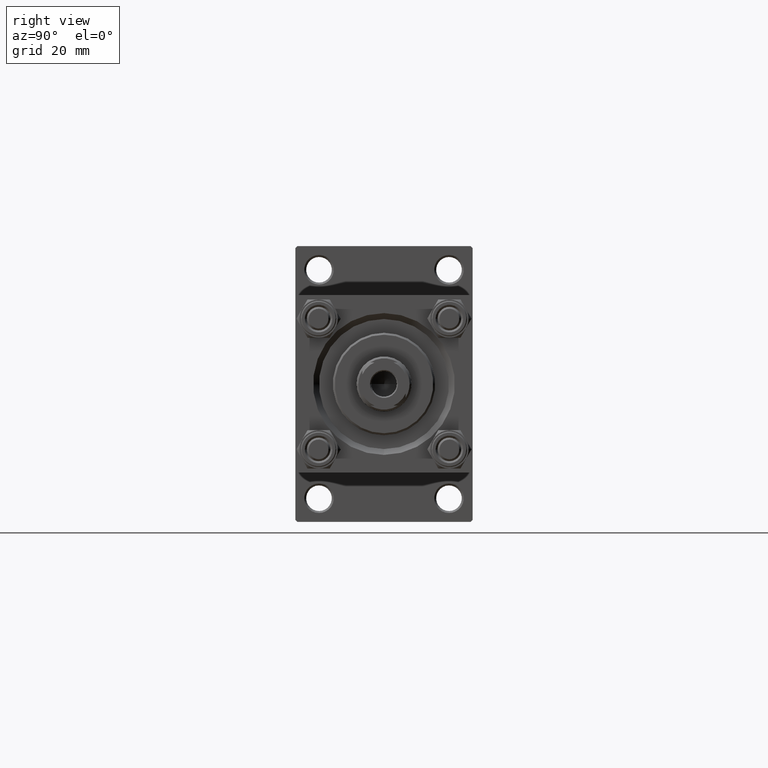
[diagram: clean part render]
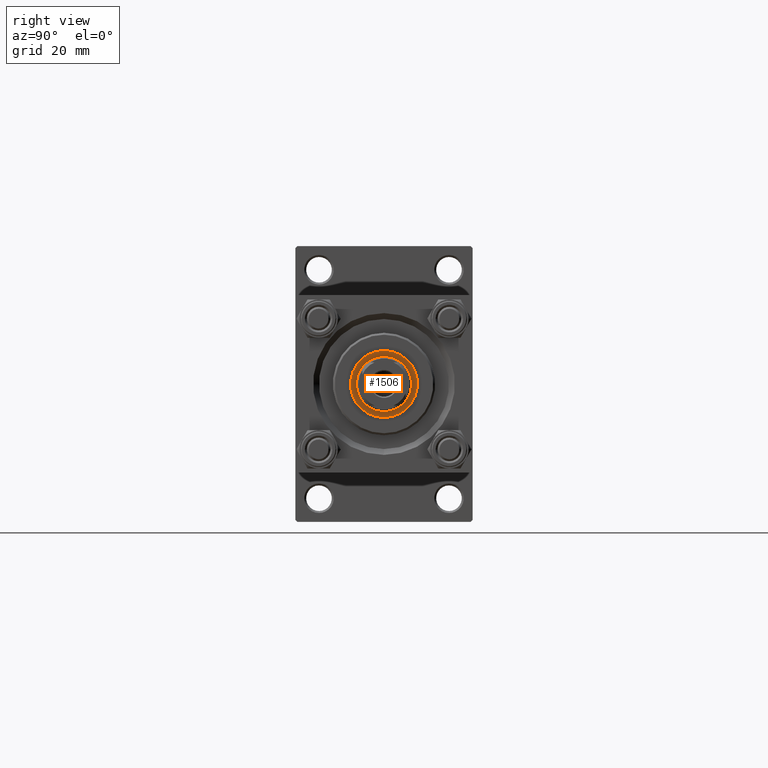
[diagram: same view with one face highlighted and labeled with its STEP entity id]
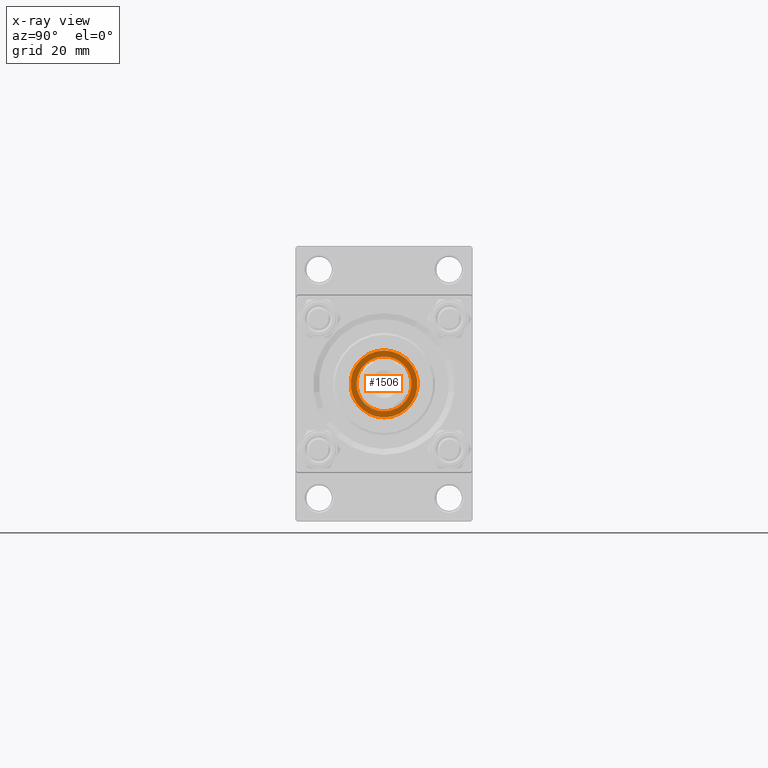
[diagram: x-ray of the same camera — body ghosted, the highlighted face saturated]
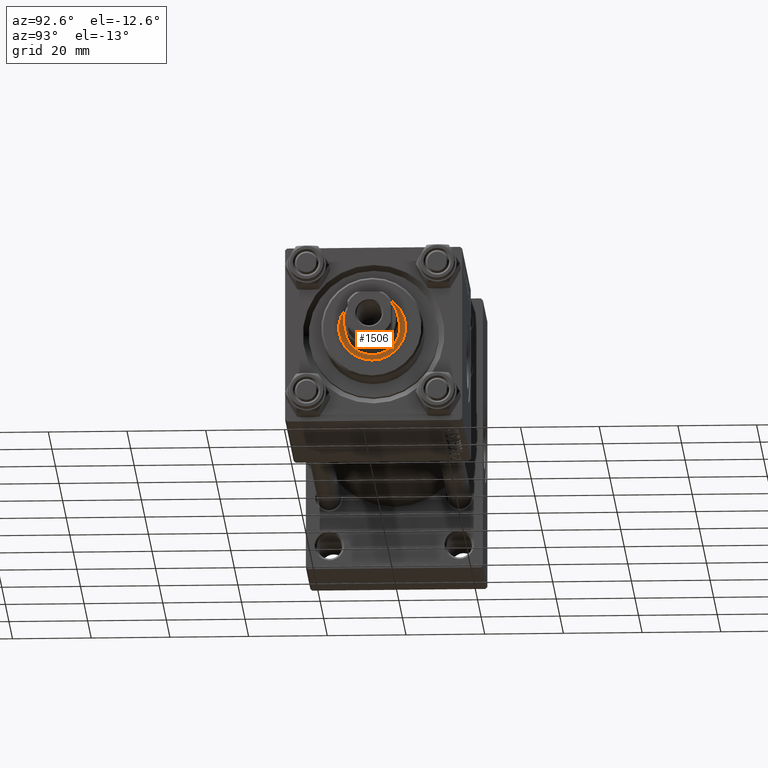
[diagram: same view with one face highlighted and labeled with its STEP entity id]
A machine part, right view. The second image highlights one B-rep face of the part: STEP entity #1506.
The next image is the same camera in x-ray: the body ghosted, the highlighted face saturated — about 0% of this face is hidden behind the body in this view.
A second angle (auxiliary view) of the same face is appended — the face is thin or edge-on in the first view.
In plain terms, the highlighted planar face has unit normal (1, 0, 0).
Its self-contained STEP definition (entity closure, byte-faithful):
#609 = AXIS2_PLACEMENT_3D ( 'NONE', #28112, #19782, #43037 ) ;
#1146 = CARTESIAN_POINT ( 'NONE',  ( 0.000000000000000000, 0.000000000000000000, 36.19999999999999574 ) ) ;
#1506 = ADVANCED_FACE ( 'NONE', ( #29058, #25252 ), #20974, .T. ) ;
#1519 = AXIS2_PLACEMENT_3D ( 'NONE', #47721, #11427, #39898 ) ;
#1786 = DIRECTION ( 'NONE',  ( 1.000000000000000000, 0.000000000000000000, -0.000000000000000000 ) ) ;
#2982 = EDGE_LOOP ( 'NONE', ( #4882, #10898 ) ) ;
#4400 = CARTESIAN_POINT ( 'NONE',  ( -8.500000000000000000, 1.040949779275250140E-15, 36.19999999999999574 ) ) ;
#4536 = CARTESIAN_POINT ( 'NONE',  ( 8.500000000000000000, 0.000000000000000000, 36.19999999999999574 ) ) ;
#4654 = AXIS2_PLACEMENT_3D ( 'NONE', #1146, #16790, #40053 ) ;
#4882 = ORIENTED_EDGE ( 'NONE', *, *, #47061, .T. ) ;
#5850 = DIRECTION ( 'NONE',  ( 1.000000000000000000, 0.000000000000000000, 0.000000000000000000 ) ) ;
#10898 = ORIENTED_EDGE ( 'NONE', *, *, #46717, .T. ) ;
#11427 = DIRECTION ( 'NONE',  ( 0.000000000000000000, 0.000000000000000000, 1.000000000000000000 ) ) ;
#12034 = EDGE_CURVE ( 'NONE', #47706, #49917, #33549, .T. ) ;
#13641 = CARTESIAN_POINT ( 'NONE',  ( 7.000000000000000000, 0.000000000000000000, 36.19999999999999574 ) ) ;
#15821 = VERTEX_POINT ( 'NONE', #13641 ) ;
#15936 = CIRCLE ( 'NONE', #4654, 7.000000000000000000 ) ;
#16790 = DIRECTION ( 'NONE',  ( -0.000000000000000000, -0.000000000000000000, -1.000000000000000000 ) ) ;
#19782 = DIRECTION ( 'NONE',  ( -0.000000000000000000, -0.000000000000000000, -1.000000000000000000 ) ) ;
#20974 = PLANE ( 'NONE',  #21444 ) ;
#21444 = AXIS2_PLACEMENT_3D ( 'NONE', #40683, #36404, #1786 ) ;
#22364 = CIRCLE ( 'NONE', #609, 7.000000000000000000 ) ;
#24294 = DIRECTION ( 'NONE',  ( 0.000000000000000000, 0.000000000000000000, 1.000000000000000000 ) ) ;
#24866 = VERTEX_POINT ( 'NONE', #46598 ) ;
#25252 = FACE_BOUND ( 'NONE', #2982, .T. ) ;
#25754 = ORIENTED_EDGE ( 'NONE', *, *, #12034, .T. ) ;
#27886 = AXIS2_PLACEMENT_3D ( 'NONE', #44746, #24294, #5850 ) ;
#28112 = CARTESIAN_POINT ( 'NONE',  ( 0.000000000000000000, 0.000000000000000000, 36.19999999999999574 ) ) ;
#29058 = FACE_OUTER_BOUND ( 'NONE', #43957, .T. ) ;
#33549 = CIRCLE ( 'NONE', #27886, 8.500000000000000000 ) ;
#35573 = ORIENTED_EDGE ( 'NONE', *, *, #49483, .T. ) ;
#36404 = DIRECTION ( 'NONE',  ( 0.000000000000000000, 0.000000000000000000, 1.000000000000000000 ) ) ;
#39898 = DIRECTION ( 'NONE',  ( 1.000000000000000000, 0.000000000000000000, 0.000000000000000000 ) ) ;
#40053 = DIRECTION ( 'NONE',  ( 1.000000000000000000, 0.000000000000000000, 0.000000000000000000 ) ) ;
#40683 = CARTESIAN_POINT ( 'NONE',  ( 0.000000000000000000, 0.000000000000000000, 36.19999999999999574 ) ) ;
#43037 = DIRECTION ( 'NONE',  ( 1.000000000000000000, 0.000000000000000000, 0.000000000000000000 ) ) ;
#43957 = EDGE_LOOP ( 'NONE', ( #25754, #35573 ) ) ;
#44746 = CARTESIAN_POINT ( 'NONE',  ( 0.000000000000000000, 0.000000000000000000, 36.19999999999999574 ) ) ;
#46598 = CARTESIAN_POINT ( 'NONE',  ( -7.000000000000000000, 8.572527594031473190E-16, 36.19999999999999574 ) ) ;
#46717 = EDGE_CURVE ( 'NONE', #24866, #15821, #15936, .T. ) ;
#47061 = EDGE_CURVE ( 'NONE', #15821, #24866, #22364, .T. ) ;
#47706 = VERTEX_POINT ( 'NONE', #4536 ) ;
#47721 = CARTESIAN_POINT ( 'NONE',  ( 0.000000000000000000, 0.000000000000000000, 36.19999999999999574 ) ) ;
#49120 = CIRCLE ( 'NONE', #1519, 8.500000000000000000 ) ;
#49483 = EDGE_CURVE ( 'NONE', #49917, #47706, #49120, .T. ) ;
#49917 = VERTEX_POINT ( 'NONE', #4400 ) ;